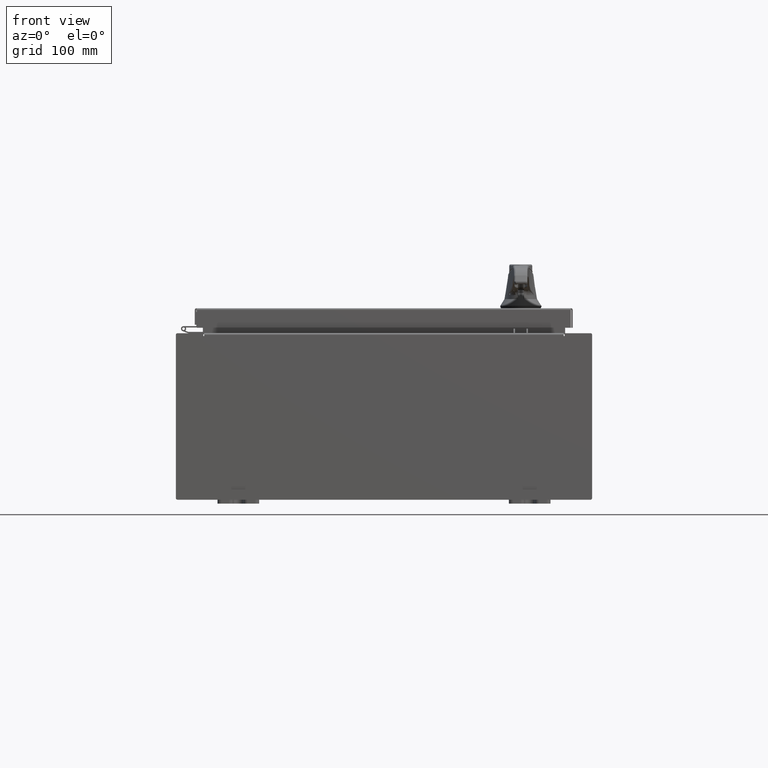
[diagram: clean part render]
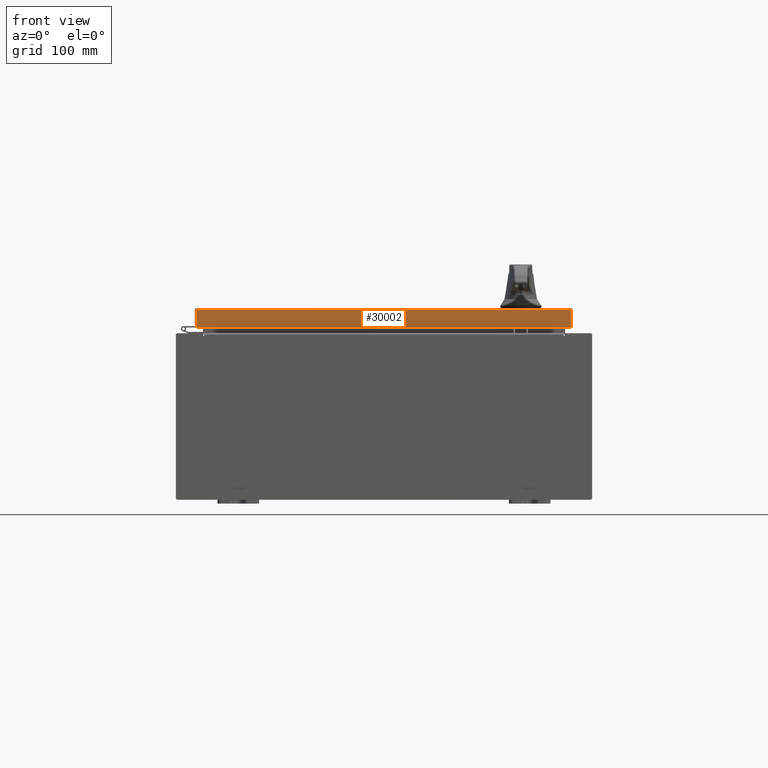
[diagram: same view with one face highlighted and labeled with its STEP entity id]
A machine part, front view. The second image highlights one B-rep face of the part: STEP entity #30002.
In plain terms, the highlighted planar face has unit normal (-0, 1, -0).
Its self-contained STEP definition (entity closure, byte-faithful):
#749 = CARTESIAN_POINT ( 'NONE',  ( 1.335409633915462200E-015, -11.09400000000000100, 2.835548029954469000E-014 ) ) ;
#1447 = ORIENTED_EDGE ( 'NONE', *, *, #113736, .F. ) ;
#1695 = AXIS2_PLACEMENT_3D ( 'NONE', #749, #71590, #19278 ) ;
#2559 = EDGE_CURVE ( 'NONE', #56518, #45412, #95679, .T. ) ;
#10454 = PLANE ( 'NONE',  #1695 ) ;
#11269 = CARTESIAN_POINT ( 'NONE',  ( 8.989157864376267100, -11.09400000000000100, -0.07469999999999980800 ) ) ;
#12793 = ORIENTED_EDGE ( 'NONE', *, *, #66175, .F. ) ;
#16705 = CARTESIAN_POINT ( 'NONE',  ( -8.989157864376267100, -11.09400000000000100, -0.08769999999999791900 ) ) ;
#17957 = DIRECTION ( 'NONE',  ( 1.000000000000000000, 1.203722403024570700E-016, -1.203722403024570700E-016 ) ) ;
#19278 = DIRECTION ( 'NONE',  ( 0.0000000000000000000, 2.532419924601866100E-015, 1.000000000000000000 ) ) ;
#19622 = VECTOR ( 'NONE', #17957, 39.37007874015748100 ) ;
#25974 = VECTOR ( 'NONE', #100155, 39.37007874015748100 ) ;
#30002 = ADVANCED_FACE ( 'NONE', ( #68487 ), #10454, .F. ) ;
#34723 = CARTESIAN_POINT ( 'NONE',  ( 8.989157864376267100, -11.09400000000000300, -0.9376999999999997600 ) ) ;
#35313 = CARTESIAN_POINT ( 'NONE',  ( 9.077999999999999400, -11.09400000000000100, -0.08770000000000008300 ) ) ;
#42394 = EDGE_LOOP ( 'NONE', ( #12793, #51455, #92916, #1447 ) ) ;
#45412 = VERTEX_POINT ( 'NONE', #99914 ) ;
#51455 = ORIENTED_EDGE ( 'NONE', *, *, #2559, .T. ) ;
#56518 = VERTEX_POINT ( 'NONE', #16705 ) ;
#56578 = CARTESIAN_POINT ( 'NONE',  ( -8.989157864376267100, -11.09400000000000100, 2.835548029954469300E-014 ) ) ;
#59963 = CARTESIAN_POINT ( 'NONE',  ( 9.077999999999999400, -11.09400000000000300, -0.9376999999999997600 ) ) ;
#63308 = VECTOR ( 'NONE', #103574, 39.37007874015748100 ) ;
#65112 = EDGE_CURVE ( 'NONE', #96409, #45412, #66015, .T. ) ;
#66015 = LINE ( 'NONE', #59963, #63308 ) ;
#66175 = EDGE_CURVE ( 'NONE', #56518, #107018, #86559, .T. ) ;
#68487 = FACE_OUTER_BOUND ( 'NONE', #42394, .T. ) ;
#71519 = CARTESIAN_POINT ( 'NONE',  ( 8.989157864376267100, -11.09400000000000100, -0.08769999999999898700 ) ) ;
#71590 = DIRECTION ( 'NONE',  ( -1.203722403024573700E-016, 1.000000000000000000, -2.532419924601866100E-015 ) ) ;
#72402 = DIRECTION ( 'NONE',  ( -0.0000000000000000000, -2.532419924601866100E-015, -1.000000000000000000 ) ) ;
#86559 = LINE ( 'NONE', #35313, #19622 ) ;
#92916 = ORIENTED_EDGE ( 'NONE', *, *, #65112, .F. ) ;
#95679 = LINE ( 'NONE', #56578, #25974 ) ;
#96409 = VERTEX_POINT ( 'NONE', #34723 ) ;
#99914 = CARTESIAN_POINT ( 'NONE',  ( -8.989157864376267100, -11.09400000000000700, -0.9376999999999976500 ) ) ;
#100155 = DIRECTION ( 'NONE',  ( 0.0000000000000000000, -2.532419924601866100E-015, -1.000000000000000000 ) ) ;
#103574 = DIRECTION ( 'NONE',  ( -1.000000000000000000, -1.203722403024570700E-016, 1.203722403024570700E-016 ) ) ;
#103929 = VECTOR ( 'NONE', #72402, 39.37007874015748100 ) ;
#107018 = VERTEX_POINT ( 'NONE', #71519 ) ;
#109444 = LINE ( 'NONE', #11269, #103929 ) ;
#113736 = EDGE_CURVE ( 'NONE', #107018, #96409, #109444, .T. ) ;